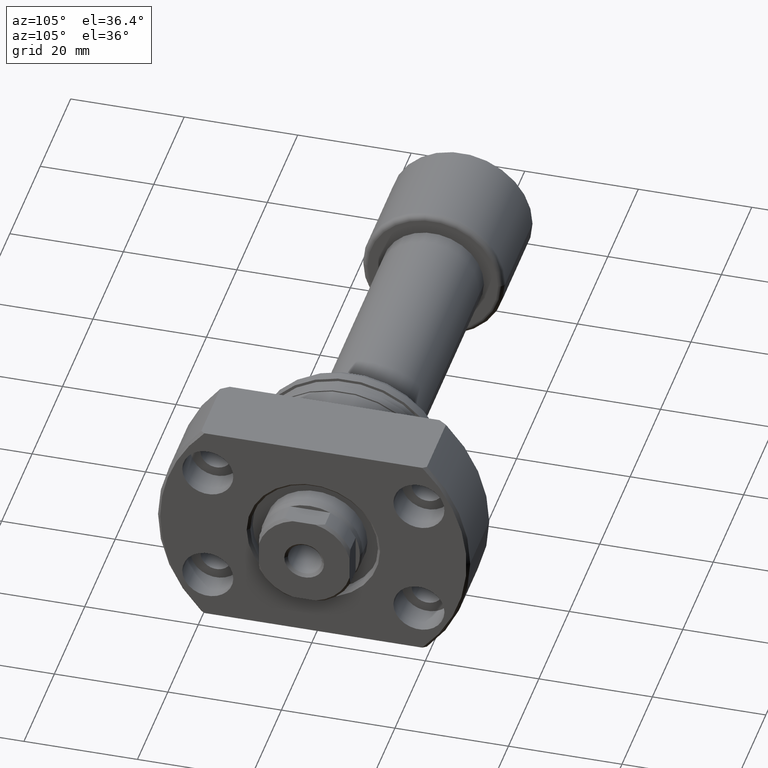
[diagram: clean part render]
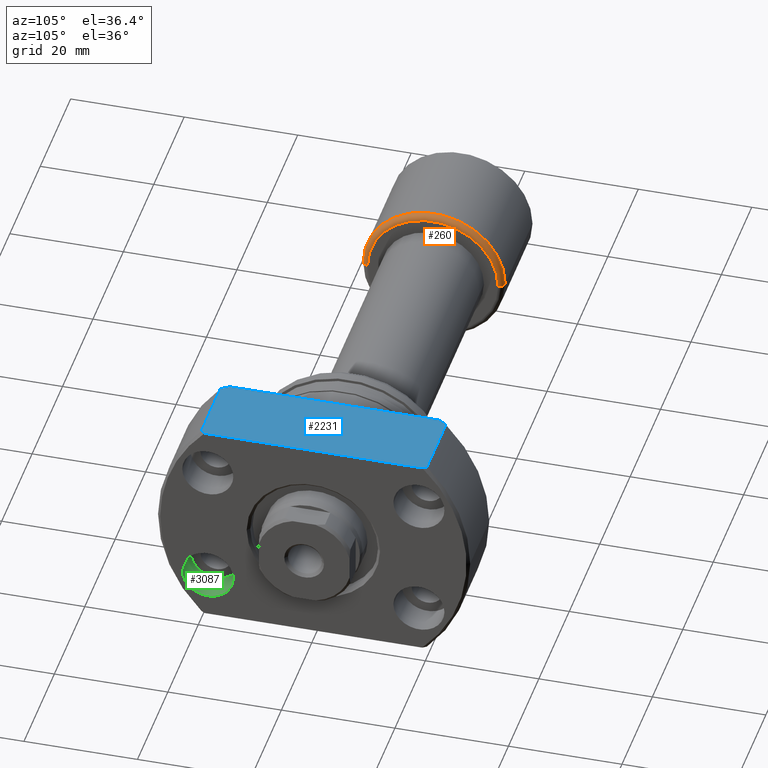
[diagram: same view with three faces highlighted in distinct colors, each labeled with its STEP entity id]
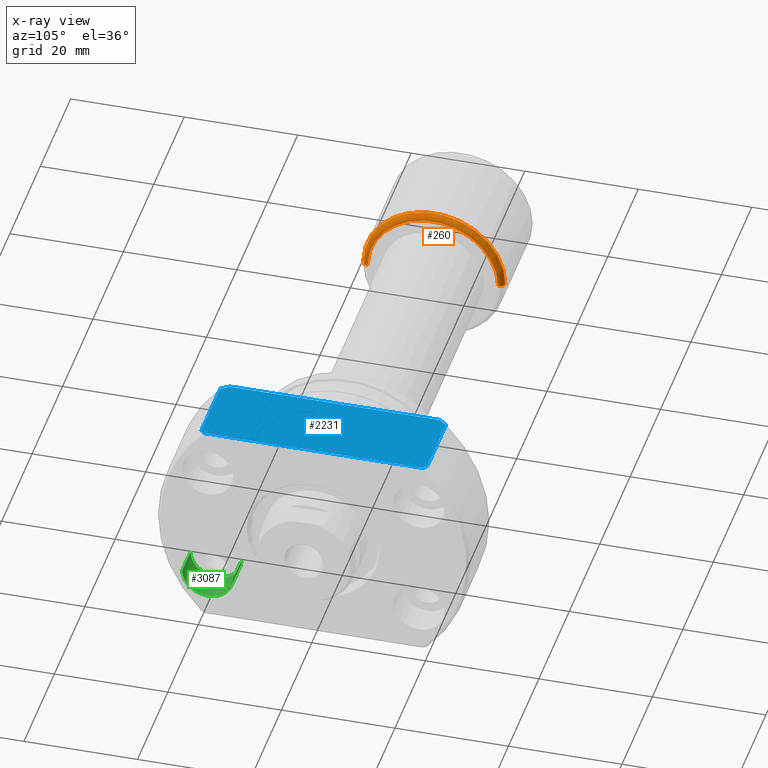
[diagram: x-ray of the same camera — body ghosted, the three highlighted faces saturated]
A machine part, auxiliary view with three faces highlighted in distinct colors.
The next image is the same camera in x-ray (body ghosted, the three faces saturated) — at least one of them is partly hidden behind the body in this view.
Their STEP definitions:

[orange] entity #260 — the highlighted toroidal blend (fillet) surface has major radius 11.5 mm and minor (blend) radius 1 mm.
#206 = VERTEX_POINT ( 'NONE', #2174 ) ;
#260 = ADVANCED_FACE ( 'NONE', ( #1235 ), #2037, .T. ) ;
#335 = ORIENTED_EDGE ( 'NONE', *, *, #1540, .T. ) ;
#379 = CARTESIAN_POINT ( 'NONE',  ( 19.39999999999999503, 11.50000000000000000, 1.408343819019456176E-15 ) ) ;
#407 = VERTEX_POINT ( 'NONE', #2535 ) ;
#447 = DIRECTION ( 'NONE',  ( -1.000000000000000000, -1.069542322069065801E-17, -0.000000000000000000 ) ) ;
#454 = DIRECTION ( 'NONE',  ( 0.000000000000000000, -1.000000000000000000, 0.000000000000000000 ) ) ;
#481 = DIRECTION ( 'NONE',  ( 1.069542322069065955E-17, -1.000000000000000000, 0.000000000000000000 ) ) ;
#540 = CARTESIAN_POINT ( 'NONE',  ( 20.39999999999999503, 11.50000000000000000, 1.469576158976823947E-15 ) ) ;
#640 = AXIS2_PLACEMENT_3D ( 'NONE', #2713, #2698, #481 ) ;
#686 = CIRCLE ( 'NONE', #2975, 12.50000000000000000 ) ;
#848 = AXIS2_PLACEMENT_3D ( 'NONE', #2620, #1079, #1136 ) ;
#856 = ORIENTED_EDGE ( 'NONE', *, *, #2767, .T. ) ;
#865 = VERTEX_POINT ( 'NONE', #2723 ) ;
#880 = DIRECTION ( 'NONE',  ( -1.000000000000000000, -1.069542322069065801E-17, -0.000000000000000000 ) ) ;
#917 = CARTESIAN_POINT ( 'NONE',  ( 20.39999999999999503, 2.181866337020893623E-16, 0.000000000000000000 ) ) ;
#1013 = CIRCLE ( 'NONE', #848, 1.000000000000000888 ) ;
#1079 = DIRECTION ( 'NONE',  ( 0.000000000000000000, 0.000000000000000000, -1.000000000000000000 ) ) ;
#1133 = EDGE_CURVE ( 'NONE', #407, #865, #1013, .T. ) ;
#1136 = DIRECTION ( 'NONE',  ( -1.000000000000000000, 0.000000000000000000, 0.000000000000000000 ) ) ;
#1226 = CIRCLE ( 'NONE', #3152, 1.000000000000000888 ) ;
#1235 = FACE_OUTER_BOUND ( 'NONE', #2392, .T. ) ;
#1342 = DIRECTION ( 'NONE',  ( 0.000000000000000000, -1.000000000000000000, 0.000000000000000000 ) ) ;
#1505 = ORIENTED_EDGE ( 'NONE', *, *, #2446, .F. ) ;
#1540 = EDGE_CURVE ( 'NONE', #1867, #206, #1226, .T. ) ;
#1621 = AXIS2_PLACEMENT_3D ( 'NONE', #917, #880, #454 ) ;
#1642 = DIRECTION ( 'NONE',  ( 0.000000000000000000, -1.000000000000000000, -1.224646799147353454E-16 ) ) ;
#1867 = VERTEX_POINT ( 'NONE', #540 ) ;
#2037 = TOROIDAL_SURFACE ( 'NONE', #640, 11.50000000000000000, 1.000000000000000888 ) ;
#2097 = ORIENTED_EDGE ( 'NONE', *, *, #1133, .F. ) ;
#2174 = CARTESIAN_POINT ( 'NONE',  ( 19.39999999999999503, 12.50000000000000000, 1.530808498934191521E-15 ) ) ;
#2384 = DIRECTION ( 'NONE',  ( 1.309811581274509052E-33, -1.224646799147353207E-16, 1.000000000000000000 ) ) ;
#2392 = EDGE_LOOP ( 'NONE', ( #856, #335, #1505, #2097 ) ) ;
#2446 = EDGE_CURVE ( 'NONE', #865, #206, #686, .T. ) ;
#2535 = CARTESIAN_POINT ( 'NONE',  ( 20.39999999999999503, -11.50000000000000000, 0.000000000000000000 ) ) ;
#2620 = CARTESIAN_POINT ( 'NONE',  ( 19.39999999999999503, -11.50000000000000000, 0.000000000000000000 ) ) ;
#2698 = DIRECTION ( 'NONE',  ( -1.000000000000000000, -1.069542322069065801E-17, -0.000000000000000000 ) ) ;
#2713 = CARTESIAN_POINT ( 'NONE',  ( 19.39999999999999503, 0.000000000000000000, 0.000000000000000000 ) ) ;
#2723 = CARTESIAN_POINT ( 'NONE',  ( 19.39999999999999503, -12.50000000000000000, 0.000000000000000000 ) ) ;
#2767 = EDGE_CURVE ( 'NONE', #407, #1867, #3026, .T. ) ;
#2975 = AXIS2_PLACEMENT_3D ( 'NONE', #3096, #447, #1342 ) ;
#3026 = CIRCLE ( 'NONE', #1621, 11.50000000000000000 ) ;
#3096 = CARTESIAN_POINT ( 'NONE',  ( 19.39999999999999503, 2.074912104813986935E-16, 0.000000000000000000 ) ) ;
#3152 = AXIS2_PLACEMENT_3D ( 'NONE', #379, #2384, #1642 ) ;

[blue] entity #2231 — the highlighted planar face has unit normal (0, 0, 1).
#57 = EDGE_CURVE ( 'NONE', #2513, #1980, #1767, .T. ) ;
#87 = VECTOR ( 'NONE', #3063, 1000.000000000000000 ) ;
#96 = DIRECTION ( 'NONE',  ( 1.000000000000000000, -2.886466111666351885E-14, -0.000000000000000000 ) ) ;
#113 = CARTESIAN_POINT ( 'NONE',  ( 26.33435831467464538, 19.41646217622441029, 19.00000000000001066 ) ) ;
#136 = AXIS2_PLACEMENT_3D ( 'NONE', #3216, #2244, #795 ) ;
#160 = CARTESIAN_POINT ( 'NONE',  ( 26.00000000000007461, -19.88089535207091885, 19.00000000000001421 ) ) ;
#287 = LINE ( 'NONE', #1047, #1583 ) ;
#567 = VERTEX_POINT ( 'NONE', #2609 ) ;
#615 = CARTESIAN_POINT ( 'NONE',  ( 26.50000000000000355, 19.18332609325086935, 19.00000000000000711 ) ) ;
#685 = CARTESIAN_POINT ( 'NONE',  ( 13.49999999999998757, -19.88089535207056002, 19.00000000000001421 ) ) ;
#720 = PLANE ( 'NONE',  #136 ) ;
#794 = CARTESIAN_POINT ( 'NONE',  ( 26.16760613831981885, -19.64905625618670726, 19.00000000000001066 ) ) ;
#795 = DIRECTION ( 'NONE',  ( 1.000000000000000000, 0.000000000000000000, -0.000000000000000000 ) ) ;
#809 = CARTESIAN_POINT ( 'NONE',  ( 12.50000000000000355, -18.47295320191106072, 19.00000000000001066 ) ) ;
#876 = CARTESIAN_POINT ( 'NONE',  ( 12.50000000000000355, 18.47295320191106072, 19.00000000000001066 ) ) ;
#939 = DIRECTION ( 'NONE',  ( 1.000000000000000000, -2.886466111666351885E-14, -0.000000000000000000 ) ) ;
#947 = CARTESIAN_POINT ( 'NONE',  ( 12.50000000000000355, -18.47295320191106072, 19.00000000000001066 ) ) ;
#1044 = EDGE_LOOP ( 'NONE', ( #1273, #3042, #3054, #2552, #2974, #2270, #1339, #1660 ) ) ;
#1047 = CARTESIAN_POINT ( 'NONE',  ( -1.360023205165816762E-12, -19.88089535207016922, 19.00000000000001421 ) ) ;
#1054 = CARTESIAN_POINT ( 'NONE',  ( 26.00000000000007461, 19.88089535207092950, 19.00000000000000355 ) ) ;
#1101 = CARTESIAN_POINT ( 'NONE',  ( 26.16766778152496187, 19.64897098899368899, 19.00000000000001066 ) ) ;
#1154 = CARTESIAN_POINT ( 'NONE',  ( 13.16276636410033873, 19.41442114037127453, 19.00000000000001066 ) ) ;
#1273 = ORIENTED_EDGE ( 'NONE', *, *, #2710, .T. ) ;
#1339 = ORIENTED_EDGE ( 'NONE', *, *, #57, .T. ) ;
#1353 = CARTESIAN_POINT ( 'NONE',  ( 26.50000000000000355, -19.18332609325086224, 19.00000000000000711 ) ) ;
#1364 = CARTESIAN_POINT ( 'NONE',  ( 26.50000000000000355, 19.88089535207168623, 19.00000000000001066 ) ) ;
#1391 = LINE ( 'NONE', #2835, #2241 ) ;
#1402 = EDGE_CURVE ( 'NONE', #567, #2737, #287, .T. ) ;
#1420 = CARTESIAN_POINT ( 'NONE',  ( 13.16251021117672160, -19.41406682004138773, 19.00000000000001066 ) ) ;
#1421 = B_SPLINE_CURVE_WITH_KNOTS ( 'NONE', 3,
 ( #947, #2920, #1420, #685 ),
 .UNSPECIFIED., .F., .F.,
 ( 4, 4 ),
 ( 0.07360185391654980314, 0.07534192973589427800 ),
 .UNSPECIFIED. ) ;
#1433 = VECTOR ( 'NONE', #3137, 1000.000000000000000 ) ;
#1515 = LINE ( 'NONE', #2265, #87 ) ;
#1552 = EDGE_CURVE ( 'NONE', #2242, #2513, #1900, .T. ) ;
#1583 = VECTOR ( 'NONE', #96, 1000.000000000000000 ) ;
#1660 = ORIENTED_EDGE ( 'NONE', *, *, #2510, .F. ) ;
#1762 = CARTESIAN_POINT ( 'NONE',  ( 26.50000000000000355, -19.18332609325086224, 19.00000000000000711 ) ) ;
#1767 = B_SPLINE_CURVE_WITH_KNOTS ( 'NONE', 3,
 ( #615, #113, #1101, #1054 ),
 .UNSPECIFIED., .F., .F.,
 ( 4, 4 ),
 ( 0.07446973138748344545, 0.07533421896860403866 ),
 .UNSPECIFIED. ) ;
#1808 = B_SPLINE_CURVE_WITH_KNOTS ( 'NONE', 3,
 ( #2393, #1154, #2936, #2624 ),
 .UNSPECIFIED., .F., .F.,
 ( 4, 4 ),
 ( 0.03128279945209438972, 0.03301205973984312758 ),
 .UNSPECIFIED. ) ;
#1900 = LINE ( 'NONE', #1364, #1433 ) ;
#1980 = VERTEX_POINT ( 'NONE', #2128 ) ;
#2091 = CARTESIAN_POINT ( 'NONE',  ( 26.00000000000007461, -19.88089535207091885, 19.00000000000001421 ) ) ;
#2128 = CARTESIAN_POINT ( 'NONE',  ( 26.00000000000007461, 19.88089535207092950, 19.00000000000000355 ) ) ;
#2213 = EDGE_CURVE ( 'NONE', #3073, #567, #1421, .T. ) ;
#2231 = ADVANCED_FACE ( 'NONE', ( #2956 ), #720, .T. ) ;
#2241 = VECTOR ( 'NONE', #939, 1000.000000000000000 ) ;
#2242 = VERTEX_POINT ( 'NONE', #1762 ) ;
#2244 = DIRECTION ( 'NONE',  ( 0.000000000000000000, 0.000000000000000000, 1.000000000000000000 ) ) ;
#2265 = CARTESIAN_POINT ( 'NONE',  ( 12.50000000000000355, -16.99999999999999645, 19.00000000000001066 ) ) ;
#2269 = EDGE_CURVE ( 'NONE', #3218, #3073, #1515, .T. ) ;
#2270 = ORIENTED_EDGE ( 'NONE', *, *, #1552, .T. ) ;
#2393 = CARTESIAN_POINT ( 'NONE',  ( 13.49999999999998757, 19.88089535207129188, 19.00000000000000355 ) ) ;
#2510 = EDGE_CURVE ( 'NONE', #2653, #1980, #1391, .T. ) ;
#2513 = VERTEX_POINT ( 'NONE', #3114 ) ;
#2552 = ORIENTED_EDGE ( 'NONE', *, *, #1402, .T. ) ;
#2609 = CARTESIAN_POINT ( 'NONE',  ( 13.49999999999998757, -19.88089535207056002, 19.00000000000001421 ) ) ;
#2624 = CARTESIAN_POINT ( 'NONE',  ( 12.50000000000000355, 18.47295320191106072, 19.00000000000001066 ) ) ;
#2653 = VERTEX_POINT ( 'NONE', #3154 ) ;
#2710 = EDGE_CURVE ( 'NONE', #2653, #3218, #1808, .T. ) ;
#2737 = VERTEX_POINT ( 'NONE', #160 ) ;
#2835 = CARTESIAN_POINT ( 'NONE',  ( -2.151057110211240797E-13, 19.88089535207167913, 19.00000000000000355 ) ) ;
#2920 = CARTESIAN_POINT ( 'NONE',  ( 12.82897297353833999, -18.94487470268462914, 19.00000000000001066 ) ) ;
#2936 = CARTESIAN_POINT ( 'NONE',  ( 12.82923531929442262, 18.94525104546319128, 19.00000000000001066 ) ) ;
#2956 = FACE_OUTER_BOUND ( 'NONE', #1044, .T. ) ;
#2974 = ORIENTED_EDGE ( 'NONE', *, *, #3055, .T. ) ;
#3042 = ORIENTED_EDGE ( 'NONE', *, *, #2269, .T. ) ;
#3054 = ORIENTED_EDGE ( 'NONE', *, *, #2213, .T. ) ;
#3055 = EDGE_CURVE ( 'NONE', #2737, #2242, #3084, .T. ) ;
#3063 = DIRECTION ( 'NONE',  ( 9.242617352055502386E-18, -1.000000000000000000, 0.000000000000000000 ) ) ;
#3073 = VERTEX_POINT ( 'NONE', #809 ) ;
#3074 = CARTESIAN_POINT ( 'NONE',  ( 26.33429591812845061, -19.41654999763447620, 19.00000000000001066 ) ) ;
#3084 = B_SPLINE_CURVE_WITH_KNOTS ( 'NONE', 3,
 ( #2091, #794, #3074, #1353 ),
 .UNSPECIFIED., .F., .F.,
 ( 4, 4 ),
 ( 0.03127512062948595295, 0.03213456893170307110 ),
 .UNSPECIFIED. ) ;
#3114 = CARTESIAN_POINT ( 'NONE',  ( 26.50000000000000355, 19.18332609325086935, 19.00000000000000711 ) ) ;
#3137 = DIRECTION ( 'NONE',  ( -0.000000000000000000, 1.000000000000000000, 0.000000000000000000 ) ) ;
#3154 = CARTESIAN_POINT ( 'NONE',  ( 13.49999999999998757, 19.88089535207129188, 19.00000000000000355 ) ) ;
#3216 = CARTESIAN_POINT ( 'NONE',  ( -2.151057110211240797E-13, 19.88089535207168623, 19.00000000000001066 ) ) ;
#3218 = VERTEX_POINT ( 'NONE', #876 ) ;

[green] entity #3087 — the highlighted cylindrical surface (edge-blend (fillet) strip) has radius 4.5 mm, axis along (1, -0, 0).
#55 = DIRECTION ( 'NONE',  ( 2.852656382717415620E-14, 1.000000000000000000, 0.000000000000000000 ) ) ;
#134 = DIRECTION ( 'NONE',  ( 1.000000000000000000, -2.886466111666351885E-14, -0.000000000000000000 ) ) ;
#155 = ORIENTED_EDGE ( 'NONE', *, *, #3124, .T. ) ;
#341 = ORIENTED_EDGE ( 'NONE', *, *, #1990, .F. ) ;
#342 = CARTESIAN_POINT ( 'NONE',  ( 26.49999999999933564, -23.10000000000076881, -10.75000000000000000 ) ) ;
#369 = ORIENTED_EDGE ( 'NONE', *, *, #2391, .T. ) ;
#582 = AXIS2_PLACEMENT_3D ( 'NONE', #2031, #2572, #1856 ) ;
#619 = VERTEX_POINT ( 'NONE', #1378 ) ;
#839 = CARTESIAN_POINT ( 'NONE',  ( 20.99999999999933564, -23.10000000000060894, -10.75000000000000000 ) ) ;
#953 = AXIS2_PLACEMENT_3D ( 'NONE', #2786, #2601, #2801 ) ;
#1043 = CARTESIAN_POINT ( 'NONE',  ( 20.99999999999946354, -18.60000000000060894, -10.75000000000000000 ) ) ;
#1173 = VECTOR ( 'NONE', #134, 1000.000000000000000 ) ;
#1185 = EDGE_LOOP ( 'NONE', ( #1845, #369, #155, #341 ) ) ;
#1321 = CARTESIAN_POINT ( 'NONE',  ( 20.99999999999933564, -23.10000000000060894, -10.75000000000000000 ) ) ;
#1354 = CARTESIAN_POINT ( 'NONE',  ( 26.49999999999959499, -14.10000000000076881, -10.75000000000000000 ) ) ;
#1378 = CARTESIAN_POINT ( 'NONE',  ( 20.99999999999959144, -14.10000000000060894, -10.75000000000000000 ) ) ;
#1387 = CIRCLE ( 'NONE', #3207, 4.500000000000000888 ) ;
#1580 = DIRECTION ( 'NONE',  ( 1.000000000000000000, -2.886466111666351885E-14, -0.000000000000000000 ) ) ;
#1611 = CYLINDRICAL_SURFACE ( 'NONE', #582, 4.500000000000000888 ) ;
#1810 = FACE_OUTER_BOUND ( 'NONE', #1185, .T. ) ;
#1817 = EDGE_CURVE ( 'NONE', #3169, #619, #1387, .T. ) ;
#1845 = ORIENTED_EDGE ( 'NONE', *, *, #1817, .F. ) ;
#1849 = VECTOR ( 'NONE', #1580, 1000.000000000000000 ) ;
#1856 = DIRECTION ( 'NONE',  ( 2.852656382717415620E-14, 1.000000000000000000, 0.000000000000000000 ) ) ;
#1860 = LINE ( 'NONE', #2361, #1173 ) ;
#1866 = VERTEX_POINT ( 'NONE', #342 ) ;
#1941 = CIRCLE ( 'NONE', #953, 4.500000000000000888 ) ;
#1990 = EDGE_CURVE ( 'NONE', #619, #2539, #1860, .T. ) ;
#2031 = CARTESIAN_POINT ( 'NONE',  ( 20.99999999999946354, -18.60000000000060894, -10.75000000000000000 ) ) ;
#2361 = CARTESIAN_POINT ( 'NONE',  ( 20.99999999999959144, -14.10000000000060894, -10.75000000000000000 ) ) ;
#2391 = EDGE_CURVE ( 'NONE', #3169, #1866, #2865, .T. ) ;
#2539 = VERTEX_POINT ( 'NONE', #1354 ) ;
#2572 = DIRECTION ( 'NONE',  ( 1.000000000000000000, -2.886466111666351885E-14, -0.000000000000000000 ) ) ;
#2601 = DIRECTION ( 'NONE',  ( 1.000000000000000000, -2.883293662278287419E-14, -3.155443620884046521E-30 ) ) ;
#2786 = CARTESIAN_POINT ( 'NONE',  ( 26.49999999999946354, -18.60000000000076881, -10.75000000000000000 ) ) ;
#2801 = DIRECTION ( 'NONE',  ( 2.852656382717415620E-14, 1.000000000000000000, 0.000000000000000000 ) ) ;
#2865 = LINE ( 'NONE', #839, #1849 ) ;
#3065 = DIRECTION ( 'NONE',  ( 1.000000000000000000, -2.883293662278287419E-14, -3.155443620884046521E-30 ) ) ;
#3087 = ADVANCED_FACE ( 'NONE', ( #1810 ), #1611, .F. ) ;
#3124 = EDGE_CURVE ( 'NONE', #1866, #2539, #1941, .T. ) ;
#3169 = VERTEX_POINT ( 'NONE', #1321 ) ;
#3207 = AXIS2_PLACEMENT_3D ( 'NONE', #1043, #3065, #55 ) ;